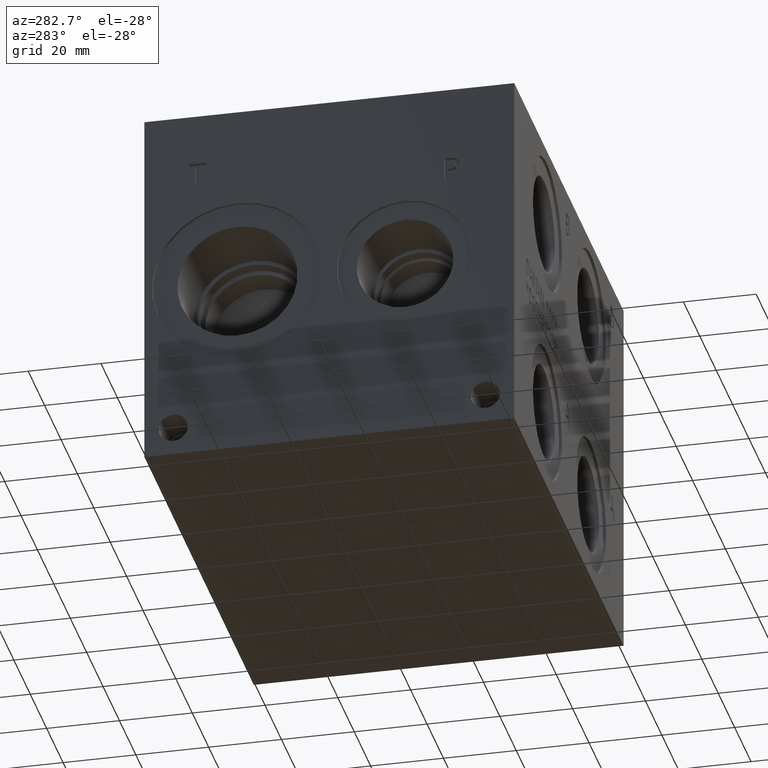
[diagram: clean part render]
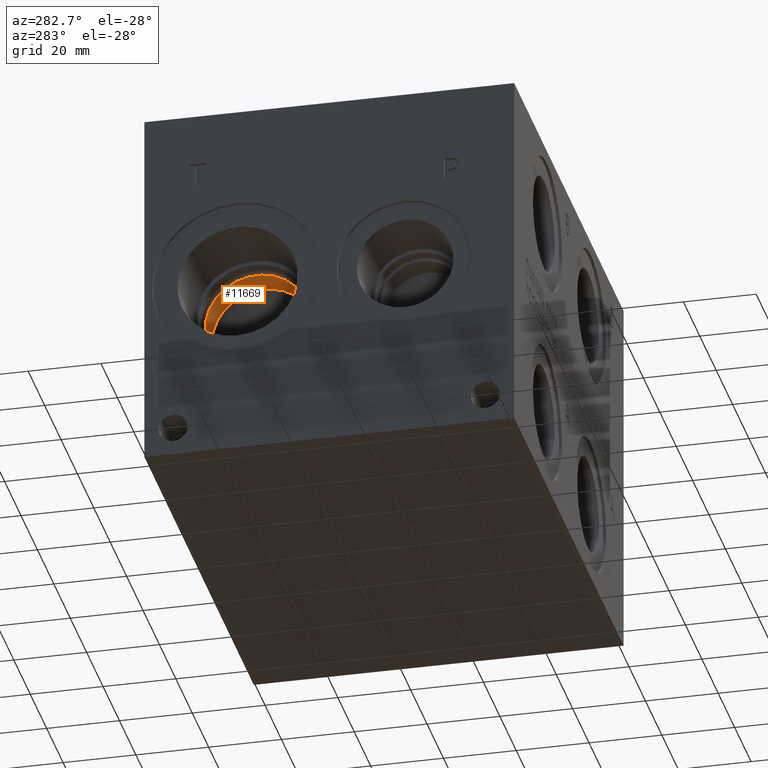
[diagram: same view with one face highlighted and labeled with its STEP entity id]
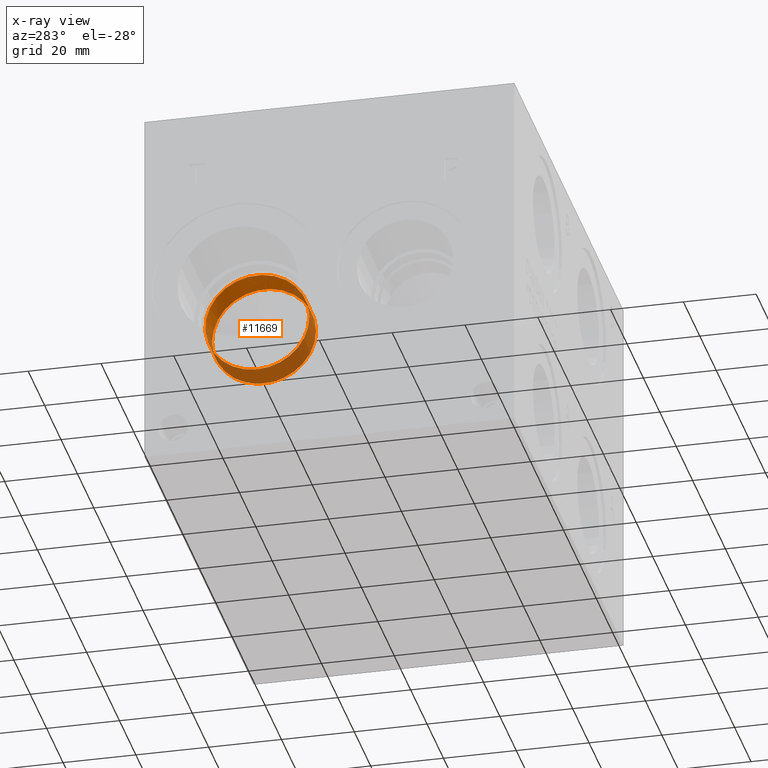
[diagram: x-ray of the same camera — body ghosted, the highlighted face saturated]
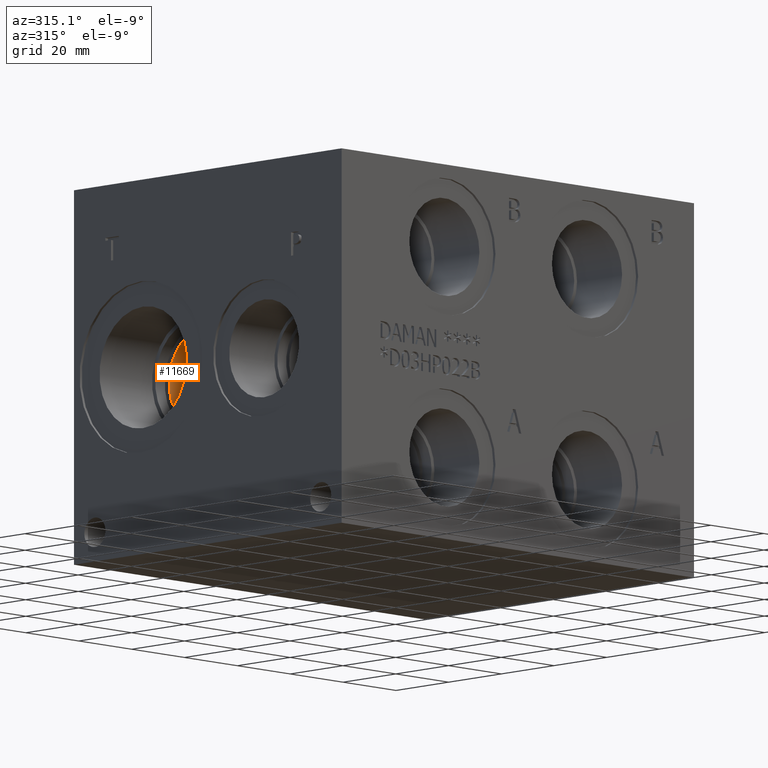
[diagram: same view with one face highlighted and labeled with its STEP entity id]
A machine part, auxiliary view. The second image highlights one B-rep face of the part: STEP entity #11669.
The next image is the same camera in x-ray: the body ghosted, the highlighted face saturated — about 55% of this face is hidden behind the body in this view.
A second angle (auxiliary view) of the same face is appended — the face is thin or edge-on in the first view.
In plain terms, the highlighted cylindrical surface (bore or boss wall) has radius 14.2875 mm, axis along (-1, 0, 0).
Its self-contained STEP definition (entity closure, byte-faithful):
#88=CYLINDRICAL_SURFACE('',#12280,14.2875);
#407=CIRCLE('',#12278,14.2875);
#408=CIRCLE('',#12279,14.2875);
#409=CIRCLE('',#12281,14.2875);
#410=CIRCLE('',#12282,14.2875);
#1444=FACE_OUTER_BOUND('',#2118,.T.);
#2118=EDGE_LOOP('',(#9981,#9982,#9983,#9984,#9985,#9986));
#3236=LINE('',#19845,#4312);
#4312=VECTOR('',#14544,14.2875);
#5362=VERTEX_POINT('',#19835);
#5363=VERTEX_POINT('',#19836);
#5365=VERTEX_POINT('',#19842);
#5366=VERTEX_POINT('',#19843);
#6945=EDGE_CURVE('',#5362,#5363,#407,.T.);
#6947=EDGE_CURVE('',#5363,#5362,#408,.T.);
#6948=EDGE_CURVE('',#5365,#5366,#409,.T.);
#6949=EDGE_CURVE('',#5365,#5363,#3236,.T.);
#6950=EDGE_CURVE('',#5366,#5365,#410,.T.);
#9981=ORIENTED_EDGE('',*,*,#6948,.F.);
#9982=ORIENTED_EDGE('',*,*,#6949,.T.);
#9983=ORIENTED_EDGE('',*,*,#6945,.F.);
#9984=ORIENTED_EDGE('',*,*,#6947,.F.);
#9985=ORIENTED_EDGE('',*,*,#6949,.F.);
#9986=ORIENTED_EDGE('',*,*,#6950,.F.);
#11669=ADVANCED_FACE('',(#1444),#88,.F.);
#12278=AXIS2_PLACEMENT_3D('',#19837,#14535,#14536);
#12279=AXIS2_PLACEMENT_3D('',#19840,#14538,#14539);
#12280=AXIS2_PLACEMENT_3D('',#19841,#14540,#14541);
#12281=AXIS2_PLACEMENT_3D('',#19844,#14542,#14543);
#12282=AXIS2_PLACEMENT_3D('',#19846,#14545,#14546);
#14535=DIRECTION('center_axis',(-1.,0.,0.));
#14536=DIRECTION('ref_axis',(0.,1.,0.));
#14538=DIRECTION('center_axis',(-1.,0.,0.));
#14539=DIRECTION('ref_axis',(0.,1.,0.));
#14540=DIRECTION('center_axis',(-1.,0.,0.));
#14541=DIRECTION('ref_axis',(0.,1.,0.));
#14542=DIRECTION('center_axis',(1.,0.,0.));
#14543=DIRECTION('ref_axis',(0.,1.,0.));
#14544=DIRECTION('',(1.,0.,0.));
#14545=DIRECTION('center_axis',(1.,0.,0.));
#14546=DIRECTION('ref_axis',(0.,1.,0.));
#19835=CARTESIAN_POINT('',(33.147,90.4875,50.8));
#19836=CARTESIAN_POINT('',(33.147,61.9125,50.8));
#19837=CARTESIAN_POINT('Origin',(33.147,76.2,50.8));
#19840=CARTESIAN_POINT('Origin',(33.147,76.2,50.8));
#19841=CARTESIAN_POINT('Origin',(16.5735,76.2,50.8));
#19842=CARTESIAN_POINT('',(24.8981080223881,61.9125,50.8));
#19843=CARTESIAN_POINT('',(24.8981080223881,76.2,36.5125));
#19844=CARTESIAN_POINT('Origin',(24.8981080223881,76.2,50.8));
#19845=CARTESIAN_POINT('',(16.5735,61.9125,50.8));
#19846=CARTESIAN_POINT('Origin',(24.8981080223881,76.2,50.8));